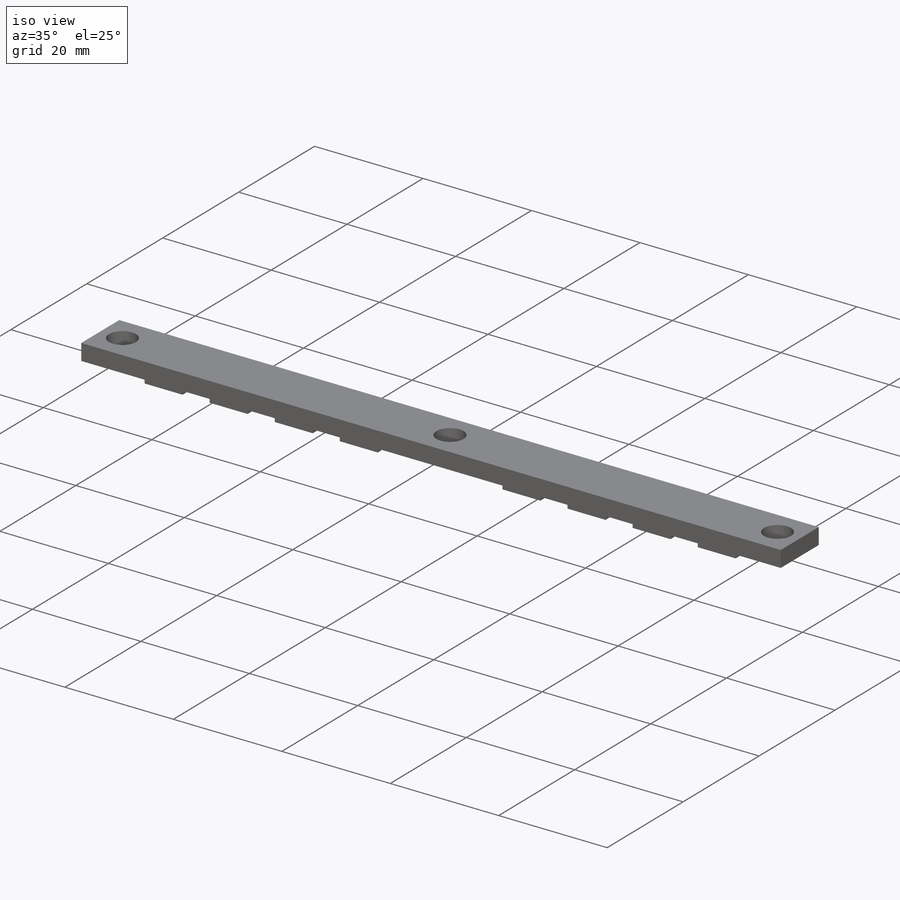
[diagram: iso view]
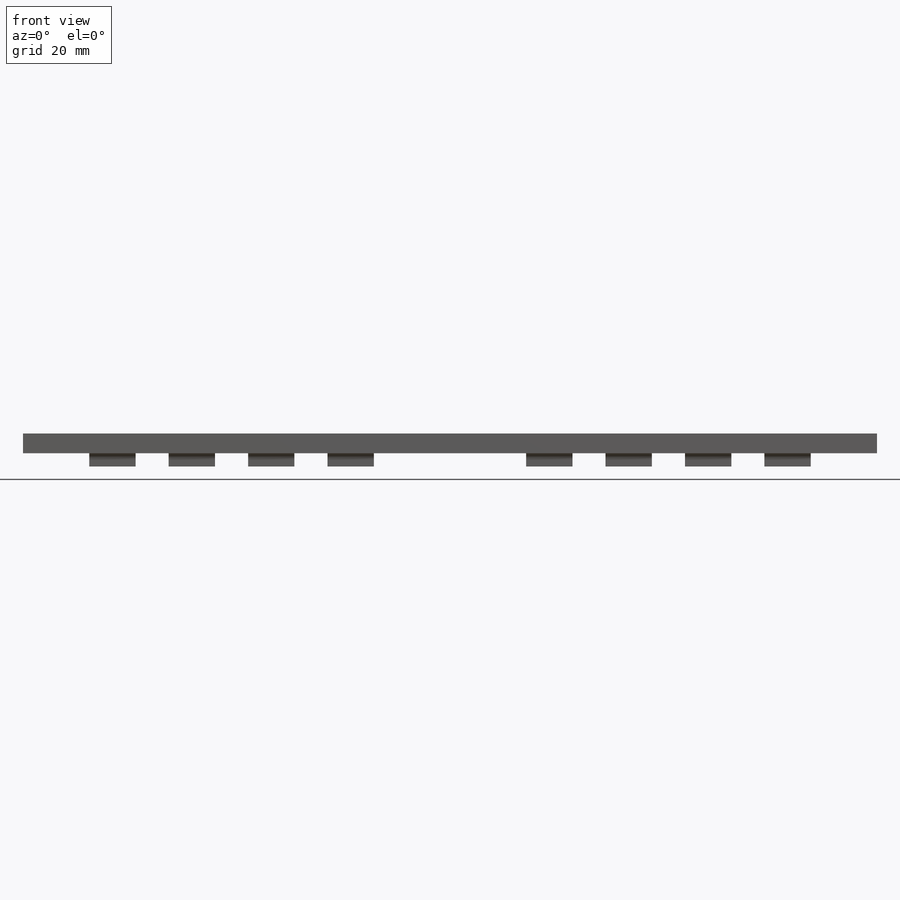
[diagram: front view]
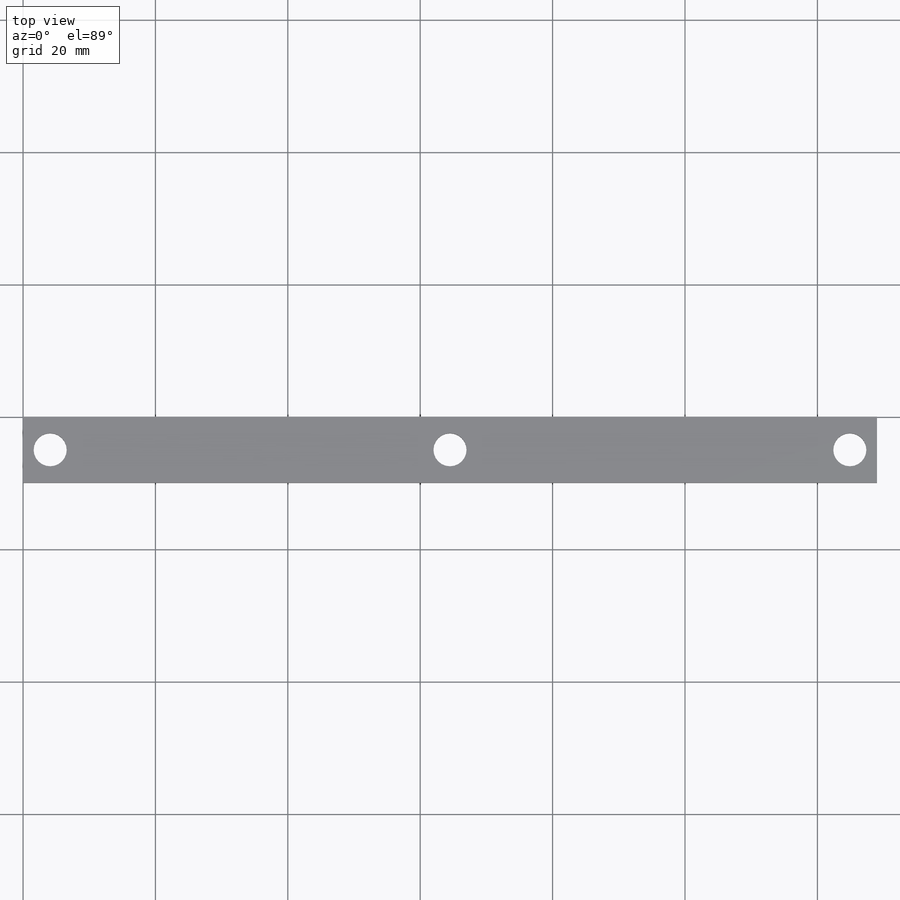
[diagram: top view]
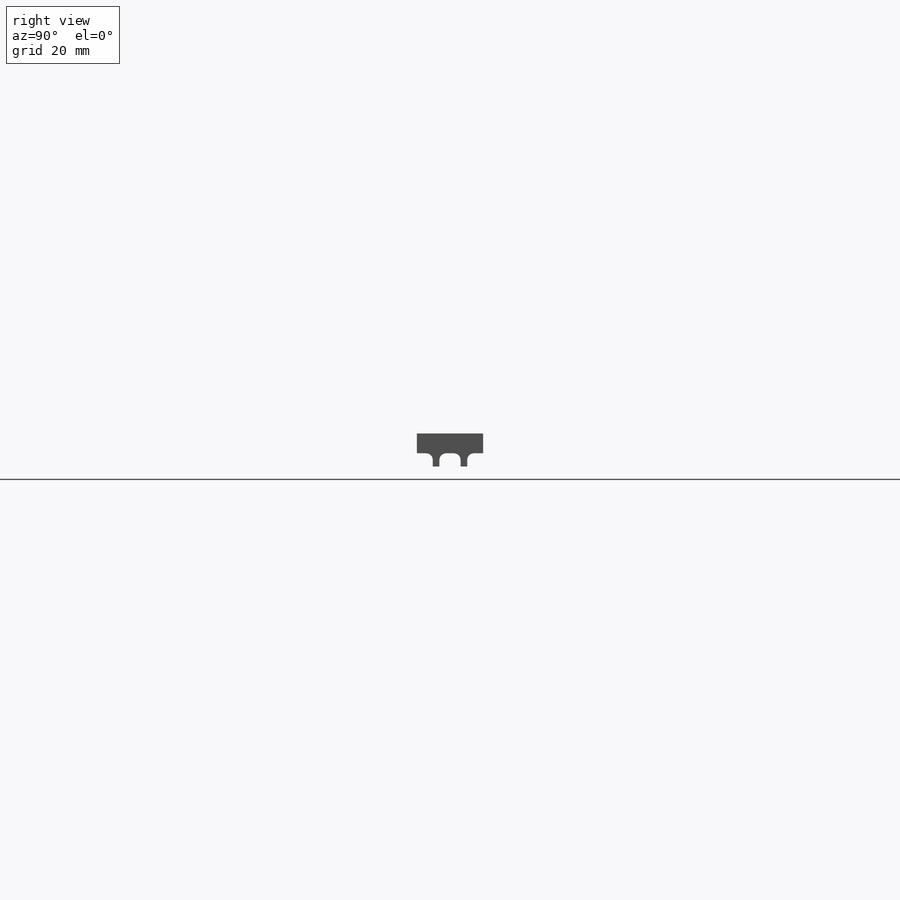
[diagram: right view]
SOLIDWORKS PART (.sldprt)
format: sldprt  version: not decoded by parser v0  size: 249,856 bytes
history: native  units: mm
features: sketch x3, extrude x2, material x1, cut_extrude x1, fillet x1, pattern_linear x1 (+11 scaffold rows collapsed)
feature tree (20):
  scaffold x11  (default folders/planes/origin — collapsed)
  material  "Material <not specified>"
  sketch  "Sketch1"  dims[c1.D8=5.2mm c1.D1=~20.108984mm c1.D3=~20.108984mm c2.D1=~3.504224mm c2.D2=20.4mm c2.D3=~14.179003mm c2.D4=3.0mm c2.D5=129.0mm c3.D3=~2.485916mm c3.D1=4.5mm c4.D3=2.4mm c4.D6=9.2mm c4.D7=5.0mm c4.D9=5.0mm c4.D10=5.0mm c5.D6=9.6mm c5.D2=~9.982252mm]
  extrude  "Boss-Extrude1"  Depth=10mm
  sketch  "Sketch2"  dims[D1=5.0mm D2=60.4mm D3=60.4mm]
  cut_extrude  "Cut-Extrude1"  [1 undecoded]
  sketch  "Sketch3"  dims[D1=3.2mm D2=1.0mm D3=7.0mm D4=51.0mm D5=15.0mm]
  extrude  "Boss-Extrude2"  Depth=2mm
  fillet  "Fillet1"  Radius=1mm
  pattern_linear  "LPattern1"  Count1=4 Count2=1 Spacing1=12mm Spacing2=10mm
decode coverage: 7 of 8 modeling features carry decoded parameters
note: ~ marks probable driven/reference dimensions
note: 1 parameter value undecoded
note: suppression state not decoded; provenance and decode notes live in map.json
